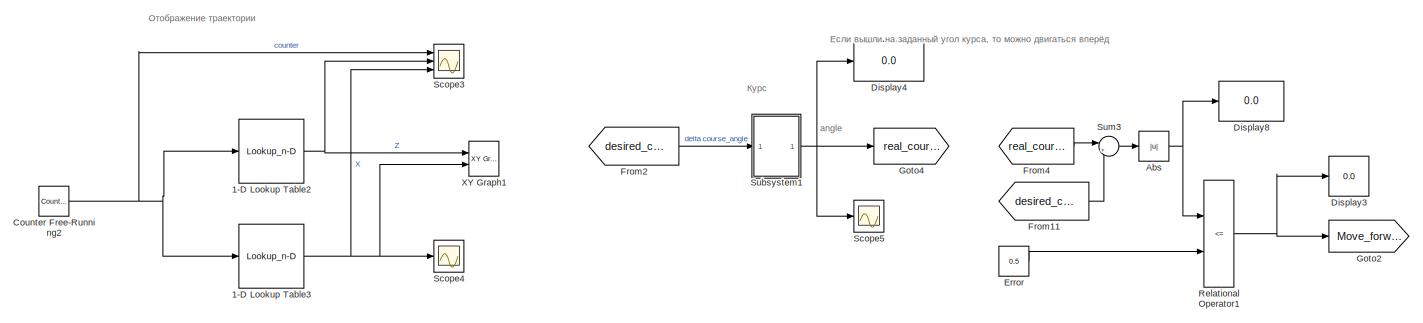
[diagram: root canvas - part 1/5, top left region]
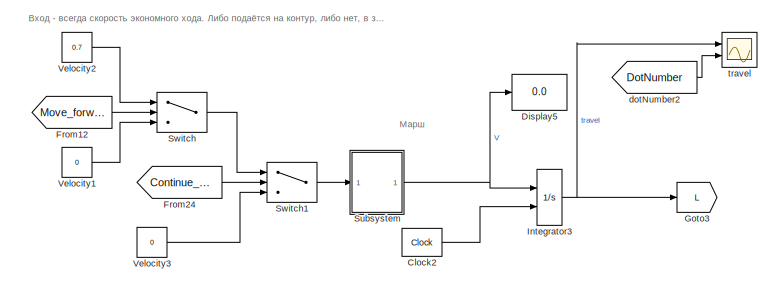
[diagram: root canvas - part 2/5, top center region]
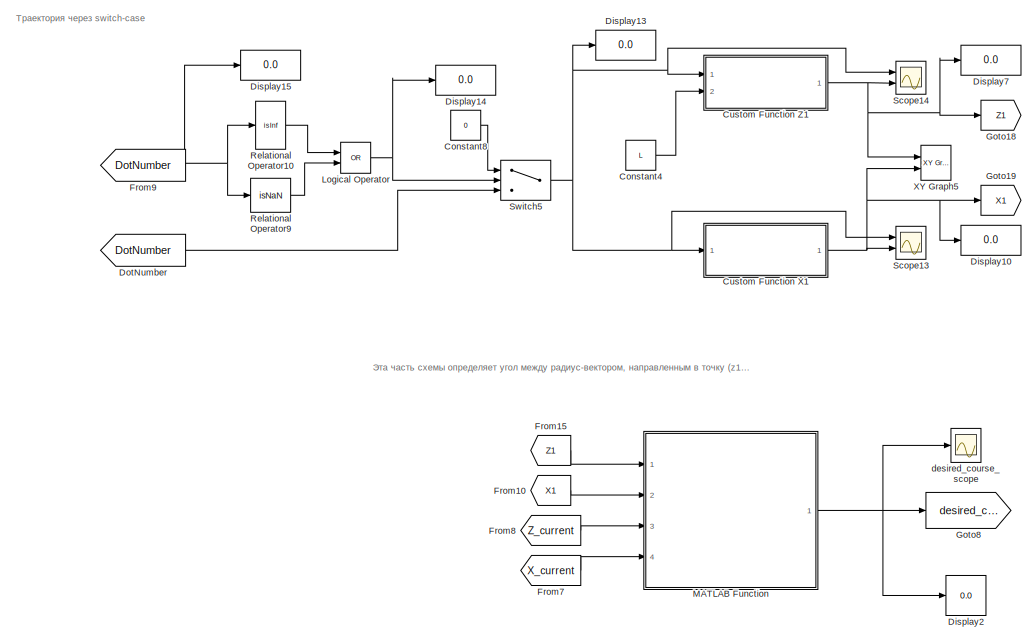
[diagram: root canvas - part 3/5, middle left region]
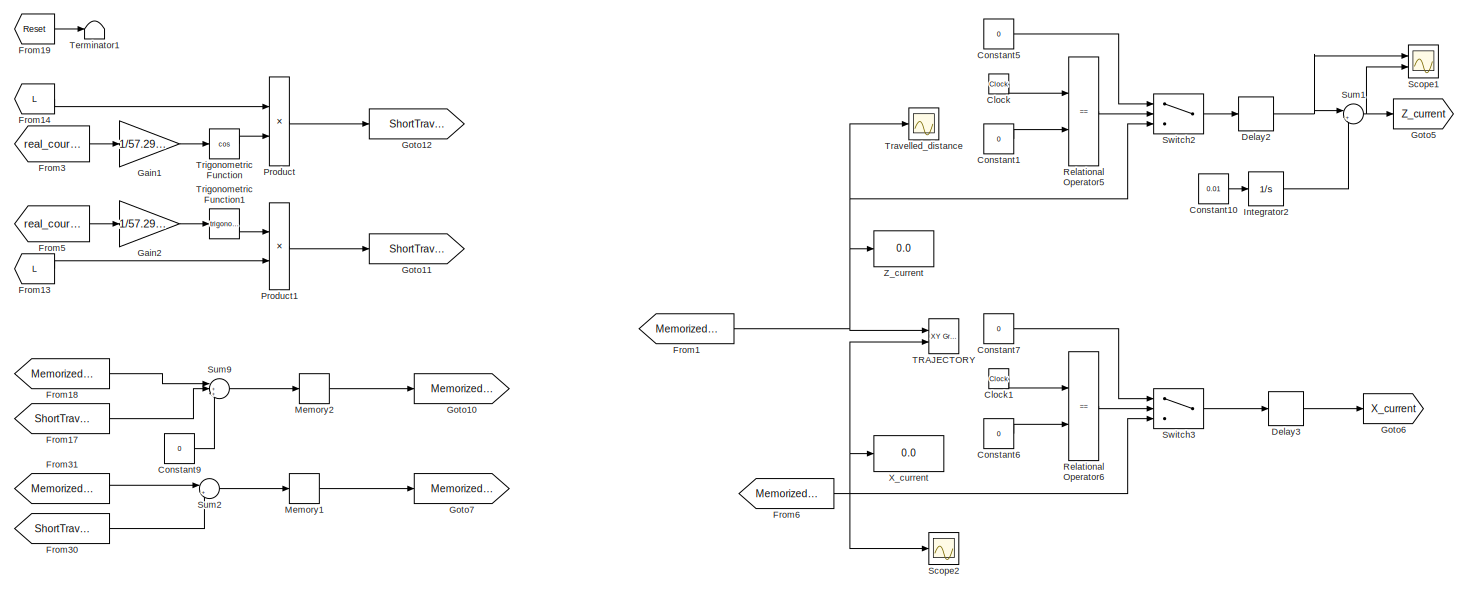
[diagram: root canvas - part 4/5, bottom center region]
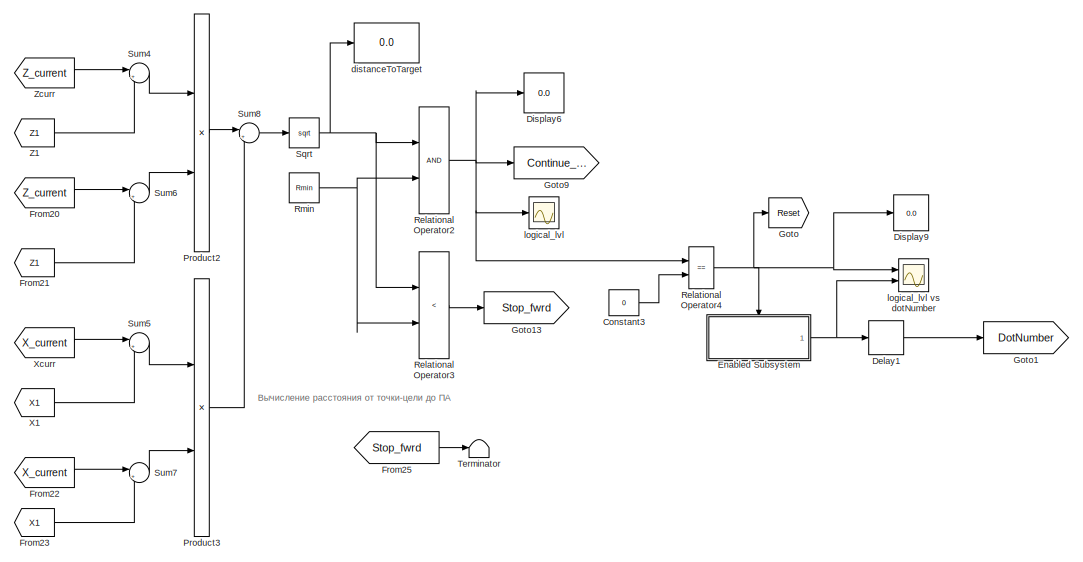
[diagram: root canvas - part 5/5, bottom right region]
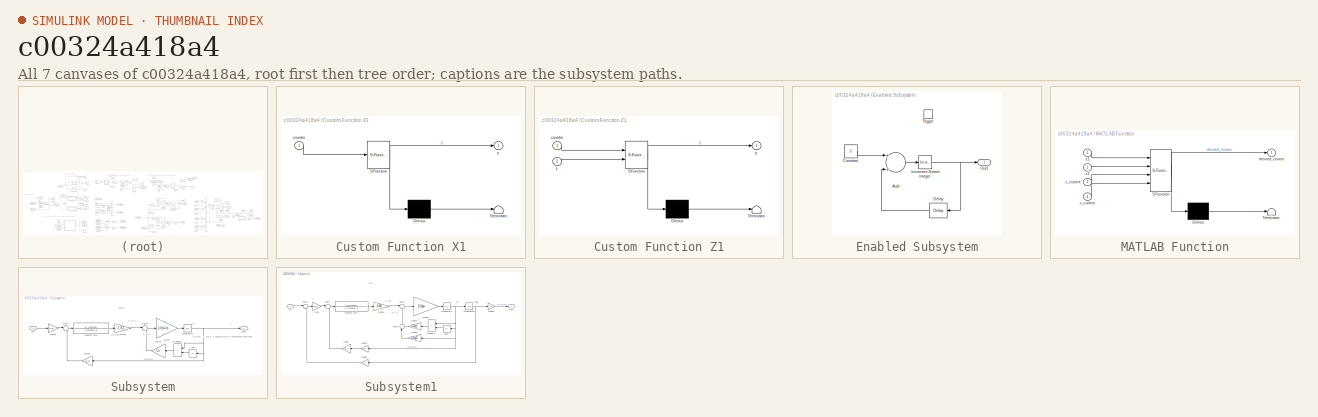
[diagram: thumbnail index - all 7 canvases of the model, root first then tree order]
MODEL slx_c00324a418a4
KIND model
CONFIG AbsTol = auto
CONFIG EnableMultiTasking = off
CONFIG FixedStep = 0.0000001
CONFIG MaxStep = auto
CONFIG MinStep = auto
CONFIG RelTol = 1e-3
CONFIG SampleTimeConstraint = Unconstrained
CONFIG Solver = VariableStepAuto
CONFIG SolverName = VariableStepAuto
CONFIG StartTime = 0.0
CONFIG StopTime = 400
BLOCK [Lookup_n-D] 1-D Lookup Table2
  BreakpointsForDimension1 = [0:7]
  BreakpointsForDimension1DataTypeStr = uint8
  BreakpointsForDimension1FirstPoint = 0
  ExtrapMethod = Cubic spline
  InternalRulePriority = Speed
  InterpMethod = Flat
  NumberOfTableDimensions = 1
  OutDataTypeStr = double
  Ports = [1, 1]
  RemoveProtectionInput = on
  RndMeth = Zero
  Table = [0,0,L,L,2*L,2*L,3*L, 3*L]
  TableDataTypeStr = double
BLOCK [Lookup_n-D] 1-D Lookup Table3
  BreakpointsForDimension1 = [0:7]
  BreakpointsForDimension1DataTypeStr = int16
  InternalRulePriority = Speed
  InterpMethod = Flat
  NumberOfTableDimensions = 1
  OutDataTypeStr = double
  Ports = [1, 1]
  RemoveProtectionInput = on
  RndMeth = Zero
  Table = [0,25,25,0,0,25,25,0]
  TableDataTypeStr = double
BLOCK [Abs] Abs
  SaturateOnIntegerOverflow = off
BLOCK [Clock] Clock
BLOCK [Clock] Clock1
BLOCK [Reference] Clock2  REF=simulink_extras/Flip Flops/Clock
  Ports = [0, 1]
  SourceBlock = simulink_extras/Flip Flops/Clock
  SourceProductBaseCode = SL
  SourceProductName = Simulink
  SourceType = Digital clock
BLOCK [Constant] Constant1
  Value = 0
BLOCK [Constant] Constant10
  Value = 0.01
BLOCK [Constant] Constant3
  Value = 0
BLOCK [Constant] Constant4
  Value = L
BLOCK [Constant] Constant5
  Value = 0
BLOCK [Constant] Constant6
  Value = 0
BLOCK [Constant] Constant7
  Value = 0
BLOCK [Constant] Constant8
  Value = 0
BLOCK [Constant] Constant9
  Value = 0
BLOCK [Reference] Counter Free-Running2  REF=simulink/Sources/Counter
Free-Running
  Ports = [0, 1]
  SourceBlock = simulink/Sources/Counter\nFree-Running
  SourceProductBaseCode = SL
  SourceProductName = Simulink
  SourceType = Counter Free-Running
BLOCK [SubSystem] Custom Function X1
  ErrorFcn = Stateflow.Translate.translate
  PermitHierarchicalResolution = ExplicitOnly
  Ports = [1, 1]
  RequestExecContextInheritance = off
  SFBlockType = MATLAB Function
  TreatAsAtomicUnit = on
  Variant = off
BLOCK [Demux] Custom Function X1/ Demux 
  Outputs = 1
  Ports = [1, 1]
BLOCK [S-Function] Custom Function X1/ SFunction 
  EnableBusSupport = on
  FunctionName = sf_sfun
  PortCounts = [1 2]
  Ports = [1, 2]
  SFcnIsStateOwnerBlock = off
  SFunctionDeploymentMode = off
  Tag = Stateflow S-Function chase_1 3
BLOCK [Terminator] Custom Function X1/ Terminator 
BLOCK [Inport] Custom Function X1/counter
  IconDisplay = Port number
BLOCK [Outport] Custom Function X1/y
  IconDisplay = Port number
BLOCK [SubSystem] Custom Function Z1
  ErrorFcn = Stateflow.Translate.translate
  PermitHierarchicalResolution = ExplicitOnly
  Ports = [2, 1]
  RequestExecContextInheritance = off
  SFBlockType = MATLAB Function
  TreatAsAtomicUnit = on
  Variant = off
BLOCK [Demux] Custom Function Z1/ Demux 
  Outputs = 1
  Ports = [1, 1]
BLOCK [S-Function] Custom Function Z1/ SFunction 
  EnableBusSupport = on
  FunctionName = sf_sfun
  PortCounts = [2 2]
  Ports = [2, 2]
  SFcnIsStateOwnerBlock = off
  SFunctionDeploymentMode = off
  Tag = Stateflow S-Function chase_1 4
BLOCK [Terminator] Custom Function Z1/ Terminator 
BLOCK [Inport] Custom Function Z1/L
  IconDisplay = Port number
  Port = 2
BLOCK [Inport] Custom Function Z1/counter
  IconDisplay = Port number
BLOCK [Outport] Custom Function Z1/y
  IconDisplay = Port number
BLOCK [Delay] Delay1
  DelayLength = 1
  InputPortMap = u0
  Ports = [1, 1]
  SampleTime = 0.05
BLOCK [Delay] Delay2
  DelayLength = 1
  InputPortMap = u0
  Ports = [1, 1]
  SampleTime = 0.05
BLOCK [Delay] Delay3
  DelayLength = 1
  InputPortMap = u0
  Ports = [1, 1]
  SampleTime = 0.05
BLOCK [Display] Display10
  Decimation = 1
  Ports = [1]
BLOCK [Display] Display13
  Decimation = 1
  Ports = [1]
BLOCK [Display] Display14
  Decimation = 1
  Ports = [1]
BLOCK [Display] Display15
  Decimation = 1
  Ports = [1]
BLOCK [Display] Display2
  Decimation = 1
  Ports = [1]
BLOCK [Display] Display3
  Decimation = 1
  Ports = [1]
BLOCK [Display] Display4
  Decimation = 1
  Ports = [1]
BLOCK [Display] Display5
  Decimation = 1
  Ports = [1]
BLOCK [Display] Display6
  Decimation = 1
  Ports = [1]
BLOCK [Display] Display7
  Decimation = 1
  Ports = [1]
BLOCK [Display] Display8
  Decimation = 1
  Ports = [1]
BLOCK [Display] Display9
  Decimation = 1
  Ports = [1]
BLOCK [From] DotNumber
  GotoTag = DotNumber
BLOCK [SubSystem] Enabled Subsystem
  Ports = [0, 1, 0, 1]
  RequestExecContextInheritance = off
  TreatAsAtomicUnit = on
  Variant = off
BLOCK [Sum] Enabled Subsystem/Add
  InputSameDT = off
  OutDataTypeStr = Inherit: Inherit via internal rule
  Ports = [2, 1]
  SaturateOnIntegerOverflow = off
BLOCK [Constant] Enabled Subsystem/Constant
  Value = 0
BLOCK [Delay] Enabled Subsystem/Delay
  DelayLength = 1
  InitialCondition = 0
  InputPortMap = u0
  Ports = [1, 1]
BLOCK [Reference] Enabled Subsystem/Increment Stored Integer  REF=simulink/Additional Math
& Discrete/Additional Math:
Increment - Decrement/Increment
Stored Integer
  Ports = [1, 1]
  SourceBlock = simulink/Additional Math\n& Discrete/Additional Math:\nIncrement - Decrement/Increment\nStored Integer
  SourceProductBaseCode = SL
  SourceProductName = Simulink
  SourceType = Stored Integer Value Increment
BLOCK [Outport] Enabled Subsystem/Out1
  IconDisplay = Port number
BLOCK [TriggerPort] Enabled Subsystem/Trigger
  PortDimensions = 1
  Ports = []
  StatesWhenEnabling = held
  VariantControl = Variant
BLOCK [Constant] Error
  Value = 0.5
BLOCK [From] From1
  GotoTag = Memorized_Z
BLOCK [From] From10
  GotoTag = X1
BLOCK [From] From11
  GotoTag = desired_course
BLOCK [From] From12
  GotoTag = Move_forward
BLOCK [From] From13
  GotoTag = L
BLOCK [From] From14
  GotoTag = L
BLOCK [From] From15
  GotoTag = Z1
BLOCK [From] From17
  GotoTag = ShortTravel_Z
BLOCK [From] From18
  GotoTag = Memorized_Z
BLOCK [From] From19
  GotoTag = Reset
BLOCK [From] From2
  GotoTag = desired_course
BLOCK [From] From20
  GotoTag = Z_current
BLOCK [From] From21
  GotoTag = Z1
BLOCK [From] From22
  GotoTag = X_current
BLOCK [From] From23
  GotoTag = X1
BLOCK [From] From24
  GotoTag = Continue_fwrd
BLOCK [From] From25
  GotoTag = Stop_fwrd
BLOCK [From] From3
  GotoTag = real_course
BLOCK [From] From30
  GotoTag = ShortTravel_X
BLOCK [From] From31
  GotoTag = Memorized_X
BLOCK [From] From4
  GotoTag = real_course
BLOCK [From] From5
  GotoTag = real_course
BLOCK [From] From6
  GotoTag = Memorized_X
BLOCK [From] From7
  GotoTag = X_current
BLOCK [From] From8
  GotoTag = Z_current
BLOCK [From] From9
  GotoTag = DotNumber
BLOCK [Gain] Gain1
  Gain = 1/57.2958
  OutDataTypeStr = Inherit: Inherit via internal rule
  ParamDataTypeStr = Inherit: Inherit via internal rule
  SaturateOnIntegerOverflow = off
BLOCK [Gain] Gain2
  Gain = 1/57.2958
  OutDataTypeStr = Inherit: Inherit via internal rule
  ParamDataTypeStr = Inherit: Inherit via internal rule
  SaturateOnIntegerOverflow = off
BLOCK [Goto] Goto
  GotoTag = Reset
BLOCK [Goto] Goto1
  GotoTag = DotNumber
BLOCK [Goto] Goto10
  GotoTag = Memorized_Z
BLOCK [Goto] Goto11
  GotoTag = ShortTravel_X
BLOCK [Goto] Goto12
  GotoTag = ShortTravel_Z
BLOCK [Goto] Goto13
  GotoTag = Stop_fwrd
BLOCK [Goto] Goto18
  GotoTag = Z1
BLOCK [Goto] Goto19
  GotoTag = X1
BLOCK [Goto] Goto2
  GotoTag = Move_forward
BLOCK [Goto] Goto3
  GotoTag = L
BLOCK [Goto] Goto4
  GotoTag = real_course
BLOCK [Goto] Goto5
  GotoTag = Z_current
BLOCK [Goto] Goto6
  GotoTag = X_current
BLOCK [Goto] Goto7
  GotoTag = Memorized_X
BLOCK [Goto] Goto8
  GotoTag = desired_course
BLOCK [Goto] Goto9
  GotoTag = Continue_fwrd
BLOCK [Integrator] Integrator2
  Ports = [1, 1]
BLOCK [Integrator] Integrator3
  ExternalReset = rising
  Ports = [2, 1]
BLOCK [Logic] Logical Operator
  AllPortsSameDT = off
  Operator = OR
  OutDataTypeStr = boolean
  Ports = [2, 1]
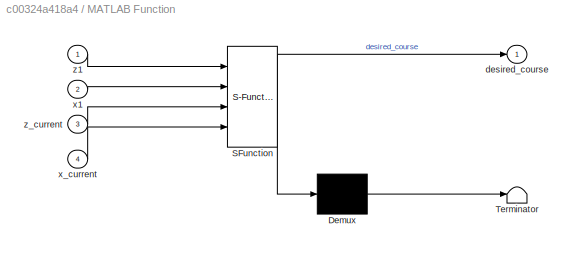
BLOCK [SubSystem] MATLAB Function
  ErrorFcn = Stateflow.Translate.translate
  PermitHierarchicalResolution = ExplicitOnly
  Ports = [4, 1]
  RequestExecContextInheritance = off
  SFBlockType = MATLAB Function
  TreatAsAtomicUnit = on
  Variant = off
BLOCK [Demux] MATLAB Function/ Demux 
  Outputs = 1
  Ports = [1, 1]
BLOCK [S-Function] MATLAB Function/ SFunction 
  EnableBusSupport = on
  FunctionName = sf_sfun
  PortCounts = [4 2]
  Ports = [4, 2]
  SFcnIsStateOwnerBlock = off
  SFunctionDeploymentMode = off
  Tag = Stateflow S-Function chase_1 5
BLOCK [Terminator] MATLAB Function/ Terminator 
BLOCK [Outport] MATLAB Function/desired_course
  IconDisplay = Port number
BLOCK [Inport] MATLAB Function/x1
  IconDisplay = Port number
  Port = 2
BLOCK [Inport] MATLAB Function/x_current
  IconDisplay = Port number
  Port = 4
BLOCK [Inport] MATLAB Function/z1
  IconDisplay = Port number
BLOCK [Inport] MATLAB Function/z_current
  IconDisplay = Port number
  Port = 3
BLOCK [Memory] Memory1
BLOCK [Memory] Memory2
BLOCK [Product] Product
  InputSameDT = off
  OutDataTypeStr = Inherit: Inherit via internal rule
  Ports = [2, 1]
  RndMeth = Floor
  SaturateOnIntegerOverflow = off
BLOCK [Product] Product1
  InputSameDT = off
  OutDataTypeStr = Inherit: Inherit via internal rule
  Ports = [2, 1]
  RndMeth = Floor
  SaturateOnIntegerOverflow = off
BLOCK [Product] Product2
  InputSameDT = off
  OutDataTypeStr = Inherit: Inherit via internal rule
  Ports = [2, 1]
  RndMeth = Floor
  SaturateOnIntegerOverflow = off
BLOCK [Product] Product3
  InputSameDT = off
  OutDataTypeStr = Inherit: Inherit via internal rule
  Ports = [2, 1]
  RndMeth = Floor
  SaturateOnIntegerOverflow = off
BLOCK [RelationalOperator] Relational Operator1
  InputSameDT = off
  Operator = <=
  OutDataTypeStr = boolean
  Ports = [2, 1]
  RndMeth = Simplest
BLOCK [RelationalOperator] Relational Operator10
  InputSameDT = off
  Operator = isInf
  OutDataTypeStr = boolean
  Ports = [1, 1]
  RndMeth = Simplest
BLOCK [RelationalOperator] Relational Operator2
  InputSameDT = off
  OutDataTypeStr = boolean
  Ports = [2, 1]
  RndMeth = Simplest
BLOCK [RelationalOperator] Relational Operator3
  InputSameDT = off
  Operator = <
  OutDataTypeStr = boolean
  Ports = [2, 1]
  RndMeth = Simplest
BLOCK [RelationalOperator] Relational Operator4
  InputSameDT = off
  Operator = ==
  OutDataTypeStr = boolean
  Ports = [2, 1]
  RndMeth = Simplest
BLOCK [RelationalOperator] Relational Operator5
  InputSameDT = off
  Operator = ==
  OutDataTypeStr = boolean
  Ports = [2, 1]
  RndMeth = Simplest
BLOCK [RelationalOperator] Relational Operator6
  InputSameDT = off
  Operator = ==
  OutDataTypeStr = boolean
  Ports = [2, 1]
  RndMeth = Simplest
BLOCK [RelationalOperator] Relational Operator9
  InputSameDT = off
  Operator = isNaN
  OutDataTypeStr = boolean
  Ports = [1, 1]
  RndMeth = Simplest
BLOCK [Constant] Rmin
  Value = Rmin
BLOCK [Scope] Scope1
  NumInputPorts = 2
  Ports = [2]
  ScopeSpecificationString = Simulink.scopes.TimeScopeBlockCfg('CurrentConfiguration', extmgr.ConfigurationSet(extmgr.Configuration('Core','General UI',true),extmgr.Configuration('Core','Source UI',true),extmgr.Configuration('Sources','WiredSimulink',true,'DataLoggingVariableName','ScopeData2'),extmgr.Configuration('Visuals','Time Domain',true,'SerializedDisplays',{struct('MinYLimReal','-0.42053','MaxYLimReal','3.78478','YLab...<+1443ch>
BLOCK [Scope] Scope13
  NumInputPorts = 2
  Ports = [2]
  ScopeSpecificationString = Simulink.scopes.TimeScopeBlockCfg('CurrentConfiguration', extmgr.ConfigurationSet(extmgr.Configuration('Core','General UI',true),extmgr.Configuration('Core','Source UI',true),extmgr.Configuration('Sources','WiredSimulink',true,'DataLoggingVariableName','ScopeData1'),extmgr.Configuration('Visuals','Time Domain',true,'SerializedDisplays',{struct('MinYLimReal','-3.125','MaxYLimReal','28.125','YLabelR...<+1434ch>
BLOCK [Scope] Scope14
  NumInputPorts = 2
  Ports = [2]
  ScopeSpecificationString = Simulink.scopes.TimeScopeBlockCfg('CurrentConfiguration', extmgr.ConfigurationSet(extmgr.Configuration('Core','General UI',true),extmgr.Configuration('Core','Source UI',true),extmgr.Configuration('Sources','WiredSimulink',true,'DataLoggingVariableName','ScopeData2'),extmgr.Configuration('Visuals','Time Domain',true,'SerializedDisplays',{struct('MinYLimReal','-0.22','MaxYLimReal','1.98','YLabelReal...<+1424ch>
BLOCK [Scope] Scope2
  NumInputPorts = 1
  Ports = [1]
  ScopeSpecificationString = Simulink.scopes.TimeScopeBlockCfg('CurrentConfiguration', extmgr.ConfigurationSet(extmgr.Configuration('Core','General UI',true),extmgr.Configuration('Core','Source UI',true),extmgr.Configuration('Sources','WiredSimulink',true,'DataLoggingVariableName','ScopeData2'),extmgr.Configuration('Visuals','Time Domain',true,'SerializedDisplays',{struct('MinYLimReal','-16.75595','MaxYLimReal','150.80354','Y...<+1446ch>
BLOCK [Scope] Scope3
  NumInputPorts = 3
  Ports = [3]
  ScopeSpecificationString = Simulink.scopes.TimeScopeBlockCfg('CurrentConfiguration', extmgr.ConfigurationSet(extmgr.Configuration('Core','General UI',true),extmgr.Configuration('Core','Source UI',true),extmgr.Configuration('Sources','WiredSimulink',true,'DataLoggingVariableName','ScopeData3'),extmgr.Configuration('Visuals','Time Domain',true,'SerializedDisplays',{struct('MinYLimReal','-3.125','MaxYLimReal','28.125','YLabelR...<+1492ch>
BLOCK [Scope] Scope4
  NumInputPorts = 1
  Ports = [1]
  ScopeSpecificationString = Simulink.scopes.TimeScopeBlockCfg('CurrentConfiguration', extmgr.ConfigurationSet(extmgr.Configuration('Core','General UI',true),extmgr.Configuration('Core','Source UI',true),extmgr.Configuration('Sources','WiredSimulink',true,'DataLoggingVariableName','ScopeData4'),extmgr.Configuration('Visuals','Time Domain',true,'SerializedDisplays',{struct('MinYLimReal','-3.125','MaxYLimReal','28.125','YLabelR...<+1397ch>
BLOCK [Scope] Scope5
  NumInputPorts = 1
  Ports = [1]
  ScopeSpecificationString = Simulink.scopes.TimeScopeBlockCfg('CurrentConfiguration', extmgr.ConfigurationSet(extmgr.Configuration('Core','General UI',true),extmgr.Configuration('Core','Source UI',true),extmgr.Configuration('Sources','WiredSimulink',true,'DataLoggingVariableName','ScopeData1'),extmgr.Configuration('Visuals','Time Domain',true,'SerializedDisplays',{struct('MinYLimReal','56.83464','MaxYLimReal','137.31866','YL...<+1452ch>
BLOCK [Sqrt] Sqrt
BLOCK [SubSystem] Subsystem
  Ports = [1, 1]
  RequestExecContextInheritance = off
  Variant = off
BLOCK [Abs] Subsystem/Abs1
  SaturateOnIntegerOverflow = off
BLOCK [Gain] Subsystem/Gain4
  Gain = 6.72
  OutDataTypeStr = Inherit: Inherit via internal rule
  ParamDataTypeStr = Inherit: Inherit via internal rule
  SaturateOnIntegerOverflow = off
BLOCK [Gain] Subsystem/Gain5
  Gain = k2_m
  OutDataTypeStr = Inherit: Inherit via internal rule
  ParamDataTypeStr = Inherit: Inherit via internal rule
  SaturateOnIntegerOverflow = off
BLOCK [Gain] Subsystem/Gain7
  Gain = 1/(m+lambda11)
  OutDataTypeStr = Inherit: Inherit via internal rule
  ParamDataTypeStr = Inherit: Inherit via internal rule
  SaturateOnIntegerOverflow = off
BLOCK [Gain] Subsystem/Gain8
  Gain = Cx
  OutDataTypeStr = Inherit: Inherit via internal rule
  ParamDataTypeStr = Inherit: Inherit via internal rule
  SaturateOnIntegerOverflow = off
BLOCK [Gain] Subsystem/Gain9
  Gain = 2.83
  OutDataTypeStr = Inherit: Inherit via internal rule
  ParamDataTypeStr = Inherit: Inherit via internal rule
  SaturateOnIntegerOverflow = off
BLOCK [Inport] Subsystem/In1
  IconDisplay = Port number
BLOCK [Integrator] Subsystem/Integrator2
  Ports = [1, 1]
BLOCK [Outport] Subsystem/Out1
  IconDisplay = Port number
BLOCK [Product] Subsystem/Product1
  InputSameDT = off
  OutDataTypeStr = Inherit: Inherit via internal rule
  Ports = [2, 1]
  RndMeth = Floor
  SaturateOnIntegerOverflow = off
BLOCK [Sum] Subsystem/Sum4
  IconShape = round
  InputSameDT = off
  Inputs = |+-
  OutDataTypeStr = Inherit: Inherit via internal rule
  Ports = [2, 1]
  SaturateOnIntegerOverflow = off
BLOCK [Sum] Subsystem/Sum5
  IconShape = round
  InputSameDT = off
  Inputs = |+-
  OutDataTypeStr = Inherit: Inherit via internal rule
  Ports = [2, 1]
  SaturateOnIntegerOverflow = off
BLOCK [TransferFcn] Subsystem/Transfer Fcn1
  Denominator = [T_thruster 1]
  Numerator = [K_thruster]
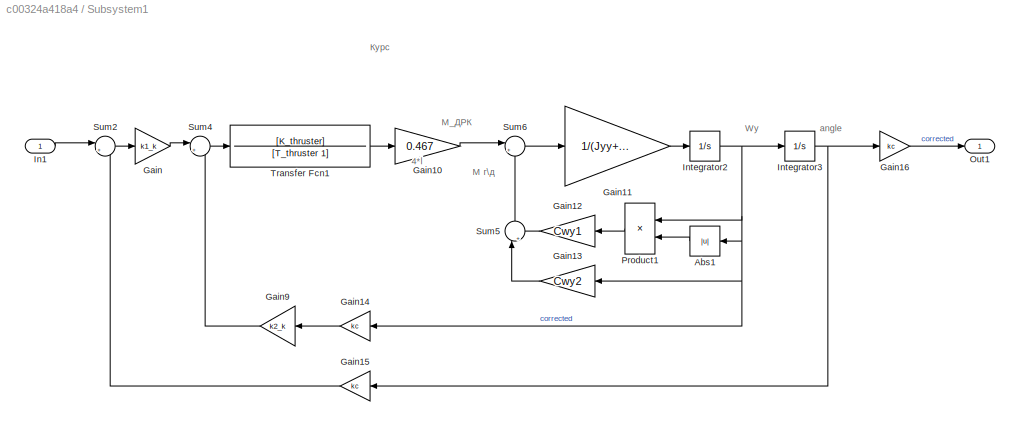
BLOCK [SubSystem] Subsystem1
  Ports = [1, 1]
  RequestExecContextInheritance = off
  Variant = off
BLOCK [Abs] Subsystem1/Abs1
  SaturateOnIntegerOverflow = off
BLOCK [Gain] Subsystem1/Gain
  Gain = k1_k
  OutDataTypeStr = Inherit: Inherit via internal rule
  ParamDataTypeStr = Inherit: Inherit via internal rule
  SaturateOnIntegerOverflow = off
BLOCK [Gain] Subsystem1/Gain10
  Gain = 0.467
  OutDataTypeStr = Inherit: Inherit via internal rule
  ParamDataTypeStr = Inherit: Inherit via internal rule
  SaturateOnIntegerOverflow = off
BLOCK [Gain] Subsystem1/Gain11
  Gain = 1/(Jyy+lambda55)
  OutDataTypeStr = Inherit: Inherit via internal rule
  ParamDataTypeStr = Inherit: Inherit via internal rule
  SaturateOnIntegerOverflow = off
BLOCK [Gain] Subsystem1/Gain12
  Gain = Cwy1
  OutDataTypeStr = Inherit: Inherit via internal rule
  ParamDataTypeStr = Inherit: Inherit via internal rule
  SaturateOnIntegerOverflow = off
BLOCK [Gain] Subsystem1/Gain13
  Gain = Cwy2
  OutDataTypeStr = Inherit: Inherit via internal rule
  ParamDataTypeStr = Inherit: Inherit via internal rule
  SaturateOnIntegerOverflow = off
BLOCK [Gain] Subsystem1/Gain14
  Gain = kc
  OutDataTypeStr = Inherit: Inherit via internal rule
  ParamDataTypeStr = Inherit: Inherit via internal rule
  SaturateOnIntegerOverflow = off
BLOCK [Gain] Subsystem1/Gain15
  Gain = kc
  OutDataTypeStr = Inherit: Inherit via internal rule
  ParamDataTypeStr = Inherit: Inherit via internal rule
  SaturateOnIntegerOverflow = off
BLOCK [Gain] Subsystem1/Gain16
  Gain = kc
  OutDataTypeStr = Inherit: Inherit via internal rule
  ParamDataTypeStr = Inherit: Inherit via internal rule
  SaturateOnIntegerOverflow = off
BLOCK [Gain] Subsystem1/Gain9
  Gain = k2_k
  OutDataTypeStr = Inherit: Inherit via internal rule
  ParamDataTypeStr = Inherit: Inherit via internal rule
  SaturateOnIntegerOverflow = off
BLOCK [Inport] Subsystem1/In1
  IconDisplay = Port number
BLOCK [Integrator] Subsystem1/Integrator2
  Ports = [1, 1]
BLOCK [Integrator] Subsystem1/Integrator3
  Ports = [1, 1]
BLOCK [Outport] Subsystem1/Out1
  IconDisplay = Port number
BLOCK [Product] Subsystem1/Product1
  InputSameDT = off
  OutDataTypeStr = Inherit: Inherit via internal rule
  Ports = [2, 1]
  RndMeth = Floor
  SaturateOnIntegerOverflow = off
BLOCK [Sum] Subsystem1/Sum2
  IconShape = round
  InputSameDT = off
  Inputs = |+-
  OutDataTypeStr = Inherit: Inherit via internal rule
  Ports = [2, 1]
  SaturateOnIntegerOverflow = off
BLOCK [Sum] Subsystem1/Sum4
  IconShape = round
  InputSameDT = off
  Inputs = |+-
  OutDataTypeStr = Inherit: Inherit via internal rule
  Ports = [2, 1]
  SaturateOnIntegerOverflow = off
BLOCK [Sum] Subsystem1/Sum5
  IconShape = round
  InputSameDT = off
  Inputs = |++
  OutDataTypeStr = Inherit: Inherit via internal rule
  Ports = [2, 1]
  SaturateOnIntegerOverflow = off
BLOCK [Sum] Subsystem1/Sum6
  IconShape = round
  InputSameDT = off
  Inputs = |+-
  OutDataTypeStr = Inherit: Inherit via internal rule
  Ports = [2, 1]
  SaturateOnIntegerOverflow = off
BLOCK [TransferFcn] Subsystem1/Transfer Fcn1
  Denominator = [T_thruster 1]
  Numerator = [K_thruster]
BLOCK [Sum] Sum1
  IconShape = round
  InputSameDT = off
  Inputs = |++
  OutDataTypeStr = Inherit: Inherit via internal rule
  Ports = [2, 1]
  SaturateOnIntegerOverflow = off
BLOCK [Sum] Sum2
  IconShape = round
  InputSameDT = off
  Inputs = |++
  OutDataTypeStr = Inherit: Inherit via internal rule
  Ports = [2, 1]
  SaturateOnIntegerOverflow = off
BLOCK [Sum] Sum3
  IconShape = round
  InputSameDT = off
  Inputs = |+-
  OutDataTypeStr = Inherit: Inherit via internal rule
  Ports = [2, 1]
  SaturateOnIntegerOverflow = off
BLOCK [Sum] Sum4
  IconShape = round
  InputSameDT = off
  Inputs = |+-
  OutDataTypeStr = Inherit: Inherit via internal rule
  Ports = [2, 1]
  SaturateOnIntegerOverflow = off
BLOCK [Sum] Sum5
  IconShape = round
  InputSameDT = off
  Inputs = |+-
  OutDataTypeStr = Inherit: Inherit via internal rule
  Ports = [2, 1]
  SaturateOnIntegerOverflow = off
BLOCK [Sum] Sum6
  IconShape = round
  InputSameDT = off
  Inputs = |+-
  OutDataTypeStr = Inherit: Inherit via internal rule
  Ports = [2, 1]
  SaturateOnIntegerOverflow = off
BLOCK [Sum] Sum7
  IconShape = round
  InputSameDT = off
  Inputs = |+-
  OutDataTypeStr = Inherit: Inherit via internal rule
  Ports = [2, 1]
  SaturateOnIntegerOverflow = off
BLOCK [Sum] Sum8
  IconShape = round
  InputSameDT = off
  Inputs = |++
  OutDataTypeStr = Inherit: Inherit via internal rule
  Ports = [2, 1]
  SaturateOnIntegerOverflow = off
BLOCK [Sum] Sum9
  IconShape = round
  InputSameDT = off
  Inputs = |+++
  OutDataTypeStr = Inherit: Inherit via internal rule
  Ports = [3, 1]
  SaturateOnIntegerOverflow = off
BLOCK [Switch] Switch
  Criteria = u2 > Threshold
  InputSameDT = off
  SaturateOnIntegerOverflow = off
BLOCK [Switch] Switch1
  Criteria = u2 > Threshold
  InputSameDT = off
  SaturateOnIntegerOverflow = off
BLOCK [Switch] Switch2
  InputSameDT = off
  SaturateOnIntegerOverflow = off
  Threshold = 1
BLOCK [Switch] Switch3
  InputSameDT = off
  SaturateOnIntegerOverflow = off
  Threshold = 1
BLOCK [Switch] Switch5
  InputSameDT = off
  SaturateOnIntegerOverflow = off
  Threshold = 1
BLOCK [Reference] TRAJECTORY  REF=simulink/Sinks/XY Graph
  Ports = [2]
  SourceBlock = simulink/Sinks/XY Graph
  SourceProductBaseCode = SL
  SourceProductName = Simulink
  SourceType = XY scope.
BLOCK [Terminator] Terminator
BLOCK [Terminator] Terminator1
BLOCK [Scope] Travelled_distance
  NumInputPorts = 1
  Ports = [1]
  ScopeSpecificationString = Simulink.scopes.TimeScopeBlockCfg('CurrentConfiguration', extmgr.ConfigurationSet(extmgr.Configuration('Core','General UI',true),extmgr.Configuration('Core','Source UI',true),extmgr.Configuration('Sources','WiredSimulink',true,'DataLoggingVariableName','ScopeData1'),extmgr.Configuration('Visuals','Time Domain',true,'SerializedDisplays',{struct('MinYLimReal','-16.89405','MaxYLimReal','152.04635','Y...<+1446ch>
BLOCK [Trigonometry] Trigonometric Function
  Operator = cos
  Ports = [1, 1]
BLOCK [Trigonometry] Trigonometric Function1
  Ports = [1, 1]
BLOCK [Constant] Velocity1
  Value = 0
BLOCK [Constant] Velocity2
  Value = 0.7
BLOCK [Constant] Velocity3
  Value = 0
BLOCK [From] X1
  GotoTag = X1
BLOCK [Reference] XY Graph1  REF=simulink/Sinks/XY Graph
  Commented = on
  Ports = [2]
  SourceBlock = simulink/Sinks/XY Graph
  SourceProductBaseCode = SL
  SourceProductName = Simulink
  SourceType = XY scope.
BLOCK [Reference] XY Graph5  REF=simulink/Sinks/XY Graph
  Ports = [2]
  SourceBlock = simulink/Sinks/XY Graph
  SourceProductBaseCode = SL
  SourceProductName = Simulink
  SourceType = XY scope.
BLOCK [Display] X_current
  Decimation = 1
  Ports = [1]
BLOCK [From] Xcurr
  GotoTag = X_current
BLOCK [From] Z1
  GotoTag = Z1
BLOCK [Display] Z_current
  Decimation = 1
  Ports = [1]
BLOCK [From] Zcurr
  GotoTag = Z_current
BLOCK [Scope] desired_course_scope
  NumInputPorts = 1
  Ports = [1]
  ScopeSpecificationString = Simulink.scopes.TimeScopeBlockCfg('CurrentConfiguration', extmgr.ConfigurationSet(extmgr.Configuration('Core','General UI',true),extmgr.Configuration('Core','Source UI',true),extmgr.Configuration('Sources','WiredSimulink',true,'DataLoggingVariableName','ScopeData4'),extmgr.Configuration('Visuals','Time Domain',true,'SerializedDisplays',{struct('MinYLimReal','-112.48274','MaxYLimReal','112.49839','...<+1462ch>
BLOCK [Display] distanceToTarget
  Decimation = 1
  Ports = [1]
BLOCK [From] dotNumber2
  GotoTag = DotNumber
BLOCK [Scope] logical_lvl
  NumInputPorts = 1
  Ports = [1]
  ScopeSpecificationString = Simulink.scopes.TimeScopeBlockCfg('CurrentConfiguration', extmgr.ConfigurationSet(extmgr.Configuration('Core','General UI',true),extmgr.Configuration('Core','Source UI',true),extmgr.Configuration('Sources','WiredSimulink',true,'DataLoggingVariableName','ScopeData1'),extmgr.Configuration('Visuals','Time Domain',true,'SerializedDisplays',{struct('MinYLimReal','-0.125','MaxYLimReal','1.125','YLabelRe...<+1439ch>
BLOCK [Scope] logical_lvl vs dotNumber
  NumInputPorts = 2
  Ports = [2]
  ScopeSpecificationString = Simulink.scopes.TimeScopeBlockCfg('CurrentConfiguration', extmgr.ConfigurationSet(extmgr.Configuration('Core','General UI',true),extmgr.Configuration('Core','Source UI',true),extmgr.Configuration('Sources','WiredSimulink',true,'DataLoggingVariableName','ScopeData3'),extmgr.Configuration('Visuals','Time Domain',true,'SerializedDisplays',{struct('MinYLimReal','-3.28708','MaxYLimReal','5.43836','YLab...<+1471ch>
BLOCK [Scope] travel
  NumInputPorts = 2
  Ports = [2]
  ScopeSpecificationString = Simulink.scopes.TimeScopeBlockCfg('CurrentConfiguration', extmgr.ConfigurationSet(extmgr.Configuration('Core','General UI',true),extmgr.Configuration('Core','Source UI',true),extmgr.Configuration('Sources','WiredSimulink',true,'DataLoggingVariableName','ScopeData2'),extmgr.Configuration('Visuals','Time Domain',true,'SerializedDisplays',{struct('MinYLimReal','-12.67329','MaxYLimReal','114.05963','Y...<+1482ch>
ANNOTATION (root): Курс
ANNOTATION (root): Марш
ANNOTATION (root): angle
ANNOTATION (root): Вход - всегда скорость экономного хода. Либо подаётся на контур, либо нет, в зависимости от близости к точке назначения
ANNOTATION (root): Вычисление расстояния от точки-цели до ПА
ANNOTATION (root): Если вышли на заданный угол курса, то можно двигаться вперёд
ANNOTATION (root): Отображение траектории
ANNOTATION (root): Траектория через switch-case
ANNOTATION (root): Эта часть схемы определяет угол между радиус-вектором, направленным в точку (z1, x1) и осью z
ANNOTATION Subsystem: 4*sin(45)
ANNOTATION Subsystem: Марш
ANNOTATION Subsystem: P_ДРК
ANNOTATION Subsystem: R г\д
ANNOTATION Subsystem: Vx
ANNOTATION Subsystem: x
ANNOTATION Subsystem: Выход - X или Z, в зависимости от направления движения
ANNOTATION Subsystem1: 4*l
ANNOTATION Subsystem1: Курс
ANNOTATION Subsystem1: M г\д
ANNOTATION Subsystem1: M_ДРК
ANNOTATION Subsystem1: Wy
ANNOTATION Subsystem1: angle
NET 1-D Lookup Table2:1 -> Scope3:2, XY Graph1:1
NET 1-D Lookup Table3:1 -> Scope3:3, Scope4:1, XY Graph1:2
NET Abs:1 -> Display8:1, Relational Operator1:1
LINE Clock1:1 -> Relational Operator6:1
LINE Clock2:1 -> Integrator3:2
LINE Clock:1 -> Relational Operator5:1
LINE Constant10:1 -> Integrator2:1
LINE Constant1:1 -> Relational Operator5:2
LINE Constant3:1 -> Relational Operator4:2
LINE Constant4:1 -> Custom Function Z1:2
LINE Constant5:1 -> Switch2:1
LINE Constant6:1 -> Relational Operator6:2
LINE Constant7:1 -> Switch3:1
LINE Constant8:1 -> Switch5:1
LINE Constant9:1 -> Sum9:3
NET Counter Free-Running2:1 -> 1-D Lookup Table2:1, 1-D Lookup Table3:1, Scope3:1
NET Custom Function X1:1 -> Display10:1, Goto19:1, Scope13:2, XY Graph5:2
NET Custom Function Z1:1 -> Display7:1, Goto18:1, Scope14:2, XY Graph5:1
LINE Delay1:1 -> Goto1:1
NET Delay2:1 -> Scope1:1, Sum1:1
LINE Delay3:1 -> Goto6:1
LINE DotNumber:1 -> Switch5:3
LINE Enabled Subsystem/Add:1 -> Enabled Subsystem/Increment Stored Integer:1
LINE Enabled Subsystem/Constant:1 -> Enabled Subsystem/Add:1
LINE Enabled Subsystem/Delay:1 -> Enabled Subsystem/Add:2
NET Enabled Subsystem/Increment Stored Integer:1 -> Enabled Subsystem/Delay:1, Enabled Subsystem/Out1:1
NET Enabled Subsystem:1 -> Delay1:1, logical_lvl vs dotNumber:2
LINE Error:1 -> Relational Operator1:2
LINE From10:1 -> MATLAB Function:2
LINE From11:1 -> Sum3:2
LINE From12:1 -> Switch:2
LINE From13:1 -> Product1:2
LINE From14:1 -> Product:1
LINE From15:1 -> MATLAB Function:1
LINE From17:1 -> Sum9:2
LINE From18:1 -> Sum9:1
LINE From19:1 -> Terminator1:1
NET From1:1 -> Switch2:3, TRAJECTORY:1, Travelled_distance:1, Z_current:1
LINE From20:1 -> Sum6:1
LINE From21:1 -> Sum6:2
LINE From22:1 -> Sum7:1
LINE From23:1 -> Sum7:2
LINE From24:1 -> Switch1:2
LINE From25:1 -> Terminator:1
LINE From2:1 -> Subsystem1:1
LINE From30:1 -> Sum2:2
LINE From31:1 -> Sum2:1
LINE From3:1 -> Gain1:1
LINE From4:1 -> Sum3:1
LINE From5:1 -> Gain2:1
NET From6:1 -> Scope2:1, Switch3:3, TRAJECTORY:2, X_current:1
LINE From7:1 -> MATLAB Function:4
LINE From8:1 -> MATLAB Function:3
NET From9:1 -> Display15:1, Relational Operator10:1, Relational Operator9:1
LINE Gain1:1 -> Trigonometric Function:1
LINE Gain2:1 -> Trigonometric Function1:1
LINE Integrator2:1 -> Sum1:2
NET Integrator3:1 -> Goto3:1, travel:1
NET Logical Operator:1 -> Display14:1, Switch5:2
NET MATLAB Function:1 -> Display2:1, Goto8:1, desired_course_scope:1
LINE Memory1:1 -> Goto7:1
LINE Memory2:1 -> Goto10:1
LINE Product1:1 -> Goto11:1
LINE Product2:1 -> Sum8:1
LINE Product3:1 -> Sum8:2
LINE Product:1 -> Goto12:1
LINE Relational Operator10:1 -> Logical Operator:1
NET Relational Operator1:1 -> Display3:1, Goto2:1
NET Relational Operator2:1 -> Display6:1, Goto9:1, Relational Operator4:1, logical_lvl:1
LINE Relational Operator3:1 -> Goto13:1
NET Relational Operator4:1 -> Display9:1, Enabled Subsystem:trigger, Goto:1, logical_lvl vs dotNumber:1
LINE Relational Operator5:1 -> Switch2:2
LINE Relational Operator6:1 -> Switch3:2
LINE Relational Operator9:1 -> Logical Operator:2
NET Rmin:1 -> Relational Operator2:2, Relational Operator3:2
NET Sqrt:1 -> Relational Operator2:1, Relational Operator3:1, distanceToTarget:1
LINE Subsystem/Abs1:1 -> Subsystem/Product1:2
LINE Subsystem/Gain4:1 -> Subsystem/Sum4:1
LINE Subsystem/Gain5:1 -> Subsystem/Sum4:2
LINE Subsystem/Gain7:1 -> Subsystem/Integrator2:1
LINE Subsystem/Gain8:1 -> Subsystem/Sum5:2
LINE Subsystem/Gain9:1 -> Subsystem/Sum5:1
LINE Subsystem/In1:1 -> Subsystem/Gain4:1
NET Subsystem/Integrator2:1 -> Subsystem/Abs1:1, Subsystem/Gain5:1, Subsystem/Out1:1, Subsystem/Product1:1
LINE Subsystem/Product1:1 -> Subsystem/Gain8:1
LINE Subsystem/Sum4:1 -> Subsystem/Transfer Fcn1:1
LINE Subsystem/Sum5:1 -> Subsystem/Gain7:1
LINE Subsystem/Transfer Fcn1:1 -> Subsystem/Gain9:1
LINE Subsystem1/Abs1:1 -> Subsystem1/Product1:2
LINE Subsystem1/Gain10:1 -> Subsystem1/Sum6:1
LINE Subsystem1/Gain11:1 -> Subsystem1/Integrator2:1
LINE Subsystem1/Gain12:1 -> Subsystem1/Sum5:2
LINE Subsystem1/Gain13:1 -> Subsystem1/Sum5:1
LINE Subsystem1/Gain14:1 -> Subsystem1/Gain9:1
LINE Subsystem1/Gain15:1 -> Subsystem1/Sum2:2
LINE Subsystem1/Gain16:1 -> Subsystem1/Out1:1
LINE Subsystem1/Gain9:1 -> Subsystem1/Sum4:2
LINE Subsystem1/Gain:1 -> Subsystem1/Sum4:1
LINE Subsystem1/In1:1 -> Subsystem1/Sum2:1
NET Subsystem1/Integrator2:1 -> Subsystem1/Abs1:1, Subsystem1/Gain13:1, Subsystem1/Gain14:1, Subsystem1/Integrator3:1, Subsystem1/Product1:1
NET Subsystem1/Integrator3:1 -> Subsystem1/Gain15:1, Subsystem1/Gain16:1
LINE Subsystem1/Product1:1 -> Subsystem1/Gain12:1
LINE Subsystem1/Sum2:1 -> Subsystem1/Gain:1
LINE Subsystem1/Sum4:1 -> Subsystem1/Transfer Fcn1:1
LINE Subsystem1/Sum5:1 -> Subsystem1/Sum6:2
LINE Subsystem1/Sum6:1 -> Subsystem1/Gain11:1
LINE Subsystem1/Transfer Fcn1:1 -> Subsystem1/Gain10:1
NET Subsystem1:1 -> Display4:1, Goto4:1, Scope5:1
NET Subsystem:1 -> Display5:1, Integrator3:1
NET Sum1:1 -> Goto5:1, Scope1:2
LINE Sum2:1 -> Memory1:1
LINE Sum3:1 -> Abs:1
LINE Sum4:1 -> Product2:1
LINE Sum5:1 -> Product3:1
LINE Sum6:1 -> Product2:2
LINE Sum7:1 -> Product3:2
LINE Sum8:1 -> Sqrt:1
LINE Sum9:1 -> Memory2:1
LINE Switch1:1 -> Subsystem:1
LINE Switch2:1 -> Delay2:1
LINE Switch3:1 -> Delay3:1
NET Switch5:1 -> Custom Function X1:1, Custom Function Z1:1, Display13:1, Scope13:1, Scope14:1
LINE Switch:1 -> Switch1:1
LINE Trigonometric Function1:1 -> Product1:1
LINE Trigonometric Function:1 -> Product:2
LINE Velocity1:1 -> Switch:3
LINE Velocity2:1 -> Switch:1
LINE Velocity3:1 -> Switch1:3
LINE X1:1 -> Sum5:2
LINE Xcurr:1 -> Sum5:1
LINE Z1:1 -> Sum4:2
LINE Zcurr:1 -> Sum4:1
LINE dotNumber2:1 -> travel:2
note: NET lines group one-source signal fan-out (src -> all destinations, sorted); 1:1 wires keep LINE
CHART Custom Function X1 states=1 transitions=1
  STATE_LABEL 'eML_blk_kernel()'
  STATE_LABEL 'SCRIPT:\nfunction y = fcn(counter)\n\n%L = 1.76;\n\nswitch counter\n    case 1\n      y = 25;\n    case 2\n      y = 0;\n    case 3\n      y = 0;\n    case 4\n      y = 25;\n    case 5\n      y = 25;\n    case 6\n      y = 0;\n    case 7\n      y = 0;\n    case 8\n      y = 25;    \n    case 9\n      y = 25;\n   otherwise\n      y = 25;\nend'
CHART Custom Function Z1 states=1 transitions=1
  STATE_LABEL 'eML_blk_kernel()'
  STATE_LABEL 'SCRIPT:\nfunction y = fcn( counter, L)\n\n%L = 1.76;\n\nswitch counter\n    case 1\n      y = L;\n    case 2\n      y = L;\n    case 3\n      y = 2*L;\n    case 4\n      y = 2*L;\n    case 5\n      y = 3*L;\n    case 6\n      y = 3*L;\n    case 7\n      y = 4*L;\n    case 8\n      y = 4*L;      \n    case 9\n      y = 5*L;      \n   otherwise\n      y = 0;\nend'
CHART MATLAB Function states=1 transitions=1
  STATE_LABEL 'eML_blk_kernel()'
  STATE_LABEL 'SCRIPT:\nfunction desired_course = fcn(z1, x1, z_current, x_current)\n\nif z1 < z_current\n    desired_course = 180 - 57.2958*atan((x1-x_current)/(abs(z1-z_current)));\nelse\n    desired_course = 57.2958*atan((x1-x_current)/((z1-z_current)));\nend\n\n'
